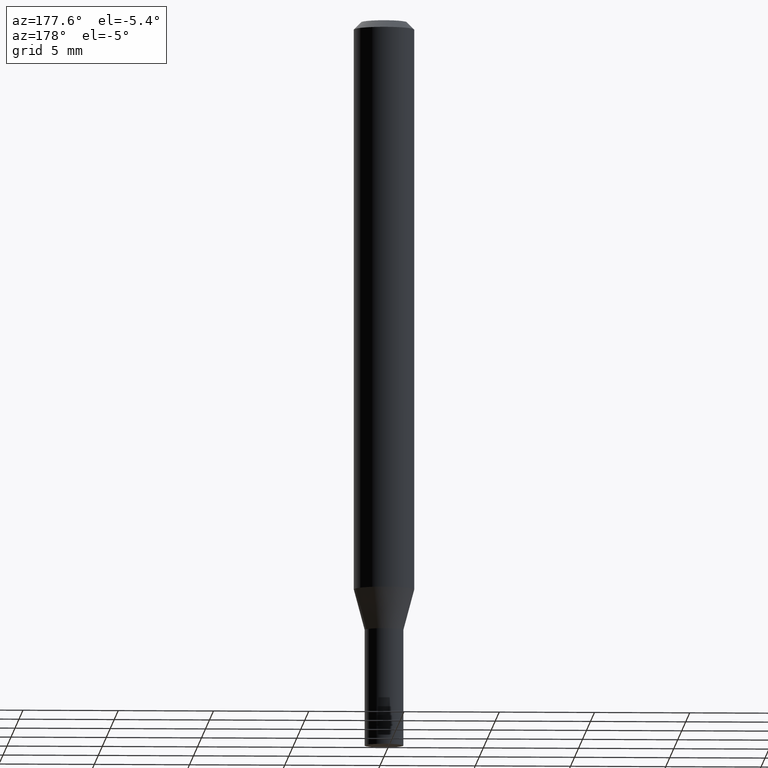
[diagram: clean part render]
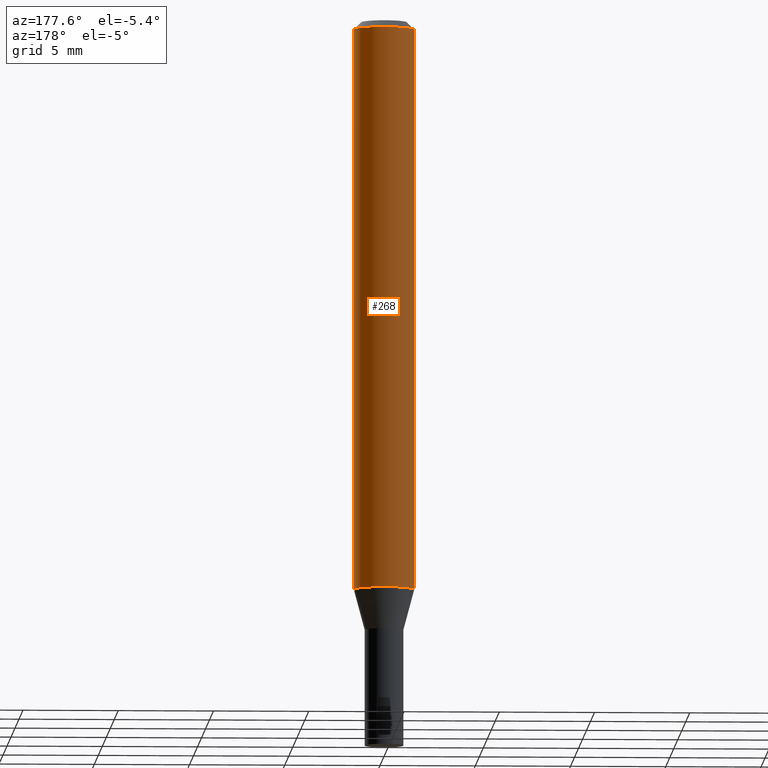
[diagram: same view with one face highlighted and labeled with its STEP entity id]
A machine part, auxiliary view. The second image highlights one B-rep face of the part: STEP entity #268.
In plain terms, the highlighted cylindrical surface (edge-blend (fillet) strip) has radius 1.5875 mm, axis along (-0, 0, 1).
Its self-contained STEP definition (entity closure, byte-faithful):
#17 = EDGE_CURVE ( 'NONE', #111, #280, #323, .T. ) ;
#25 = ORIENTED_EDGE ( 'NONE', *, *, #117, .T. ) ;
#32 = CARTESIAN_POINT ( 'NONE',  ( -0.06250000000000000000, -1.635138303972230884E-15, -0.01499999999999999944 ) ) ;
#58 = VERTEX_POINT ( 'NONE', #395 ) ;
#65 = VERTEX_POINT ( 'NONE', #32 ) ;
#67 = CARTESIAN_POINT ( 'NONE',  ( -0.06250000000000000000, 4.440892098500626162E-16, -3.074334431409316114E-30 ) ) ;
#68 = DIRECTION ( 'NONE',  ( -2.445468806185136597E-29, 3.491481338843145583E-15, 1.000000000000000000 ) ) ;
#70 = DIRECTION ( 'NONE',  ( -2.445468806185136877E-29, 3.491481338843145188E-15, 1.000000000000000000 ) ) ;
#73 = AXIS2_PLACEMENT_3D ( 'NONE', #331, #160, #301 ) ;
#97 = VECTOR ( 'NONE', #175, 39.37007874015748143 ) ;
#111 = VERTEX_POINT ( 'NONE', #218 ) ;
#117 = EDGE_CURVE ( 'NONE', #111, #58, #374, .T. ) ;
#118 = CYLINDRICAL_SURFACE ( 'NONE', #411, 0.06250000000000000000 ) ;
#120 = DIRECTION ( 'NONE',  ( 1.000000000000000000, -6.982962677686266711E-15, 4.876176775795935793E-29 ) ) ;
#160 = DIRECTION ( 'NONE',  ( -2.445468806185136597E-29, 3.491481338843145583E-15, 1.000000000000000000 ) ) ;
#164 = FACE_OUTER_BOUND ( 'NONE', #416, .T. ) ;
#172 = ORIENTED_EDGE ( 'NONE', *, *, #17, .F. ) ;
#175 = DIRECTION ( 'NONE',  ( -2.445468806185136877E-29, 3.491481338843145188E-15, 1.000000000000000000 ) ) ;
#218 = CARTESIAN_POINT ( 'NONE',  ( 0.06250000000000000000, -4.542517974917331985E-15, -1.176028856829701263 ) ) ;
#219 = EDGE_CURVE ( 'NONE', #280, #65, #339, .T. ) ;
#227 = VECTOR ( 'NONE', #70, 39.37007874015748143 ) ;
#228 = DIRECTION ( 'NONE',  ( -2.445468806185136597E-29, 3.491481338843145583E-15, 1.000000000000000000 ) ) ;
#268 = ADVANCED_FACE ( 'NONE', ( #164 ), #118, .T. ) ;
#280 = VERTEX_POINT ( 'NONE', #342 ) ;
#296 = ORIENTED_EDGE ( 'NONE', *, *, #450, .T. ) ;
#301 = DIRECTION ( 'NONE',  ( 1.000000000000000000, -6.982962677686266711E-15, 0.000000000000000000 ) ) ;
#316 = DIRECTION ( 'NONE',  ( 1.000000000000000000, -6.982962677686270655E-15, 0.000000000000000000 ) ) ;
#323 = LINE ( 'NONE', #427, #227 ) ;
#331 = CARTESIAN_POINT ( 'NONE',  ( 3.668203209277705088E-31, -5.237222008264718399E-17, -0.01499999999999999944 ) ) ;
#339 = CIRCLE ( 'NONE', #73, 0.06250000000000000000 ) ;
#342 = CARTESIAN_POINT ( 'NONE',  ( 0.06250000000000000000, -4.888073874380388472E-16, -0.01499999999999999944 ) ) ;
#374 = CIRCLE ( 'NONE', #413, 0.06250000000000000000 ) ;
#382 = LINE ( 'NONE', #67, #97 ) ;
#387 = CARTESIAN_POINT ( 'NONE',  ( 2.875941884550600352E-29, -4.106082807561939527E-15, -1.176028856829701263 ) ) ;
#395 = CARTESIAN_POINT ( 'NONE',  ( -0.06250000000000000000, -3.661993597711876911E-15, -1.176028856829701263 ) ) ;
#398 = CARTESIAN_POINT ( 'NONE',  ( 0.000000000000000000, 0.000000000000000000, 0.000000000000000000 ) ) ;
#411 = AXIS2_PLACEMENT_3D ( 'NONE', #398, #228, #120 ) ;
#413 = AXIS2_PLACEMENT_3D ( 'NONE', #387, #68, #316 ) ;
#416 = EDGE_LOOP ( 'NONE', ( #25, #296, #431, #172 ) ) ;
#427 = CARTESIAN_POINT ( 'NONE',  ( 0.06250000000000000000, -4.364351673553916694E-16, 3.047610484872459871E-30 ) ) ;
#431 = ORIENTED_EDGE ( 'NONE', *, *, #219, .F. ) ;
#450 = EDGE_CURVE ( 'NONE', #58, #65, #382, .T. ) ;